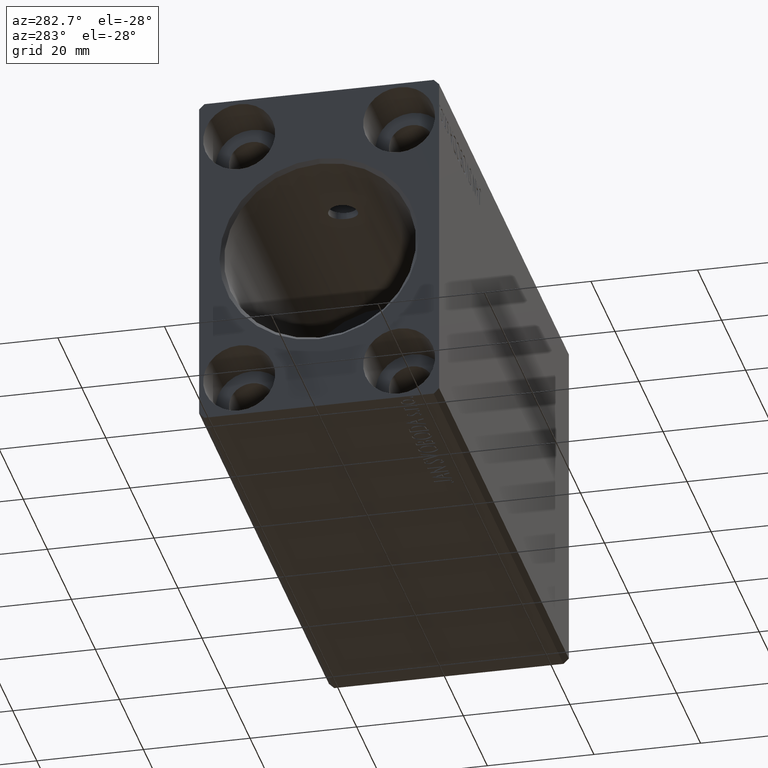
[diagram: clean part render]
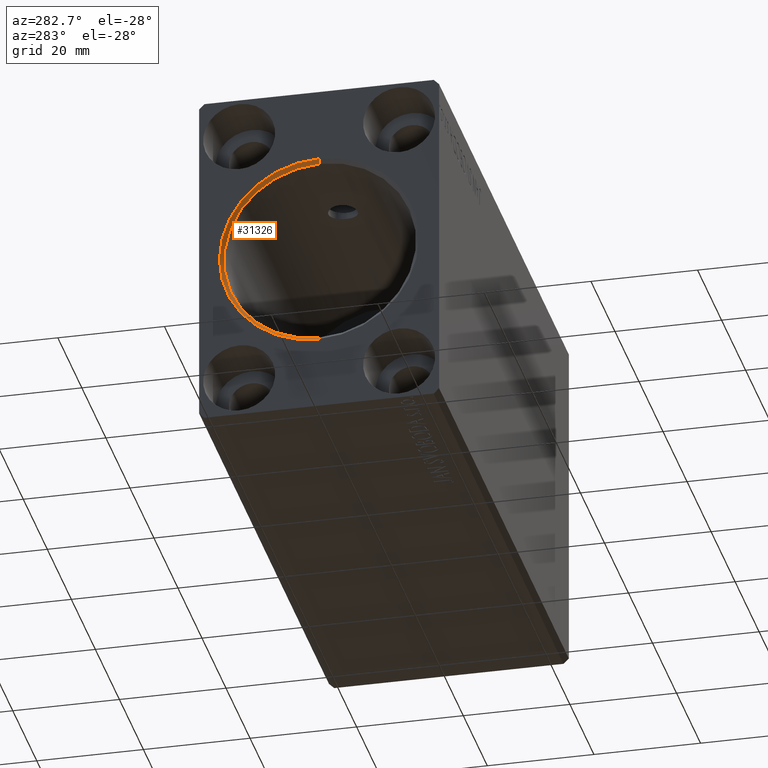
[diagram: same view with one face highlighted and labeled with its STEP entity id]
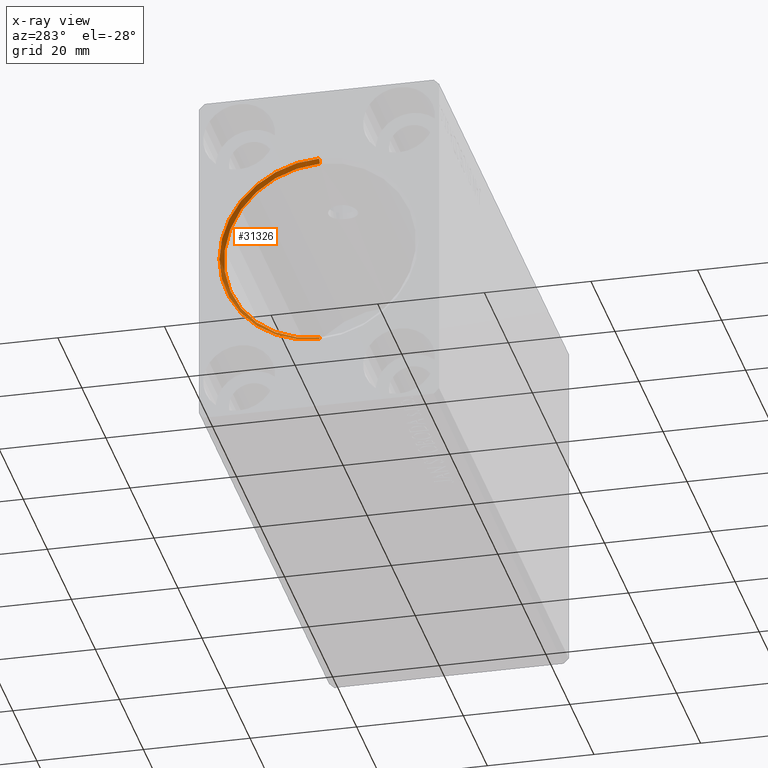
[diagram: x-ray of the same camera — body ghosted, the highlighted face saturated]
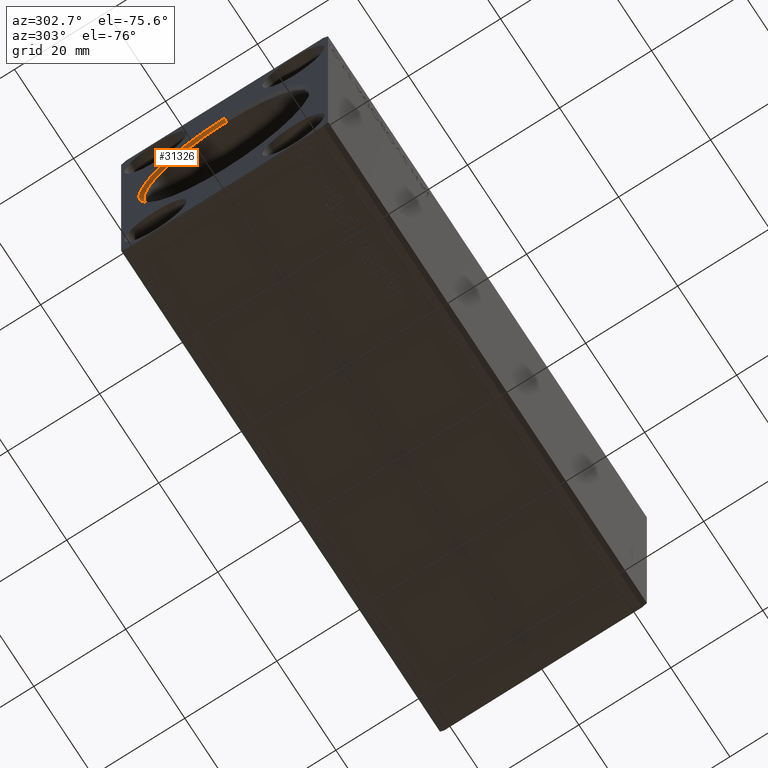
[diagram: same view with one face highlighted and labeled with its STEP entity id]
A machine part, auxiliary view. The second image highlights one B-rep face of the part: STEP entity #31326.
The next image is the same camera in x-ray: the body ghosted, the highlighted face saturated — about 0% of this face is hidden behind the body in this view.
A second angle (auxiliary view) of the same face is appended — the face is thin or edge-on in the first view.
In plain terms, the highlighted conical surface has half-angle 45 deg.
Its self-contained STEP definition (entity closure, byte-faithful):
#648 = VERTEX_POINT ( 'NONE', #16756 ) ;
#1926 = VERTEX_POINT ( 'NONE', #40739 ) ;
#2140 = DIRECTION ( 'NONE',  ( -1.000000000000000000, 0.000000000000000000, 0.000000000000000000 ) ) ;
#2732 = DIRECTION ( 'NONE',  ( -0.7071067811865510144, 8.659560562354890950E-17, -0.7071067811865441310 ) ) ;
#2908 = EDGE_CURVE ( 'NONE', #33470, #1926, #33032, .T. ) ;
#5002 = DIRECTION ( 'NONE',  ( 0.000000000000000000, 0.000000000000000000, -1.000000000000000000 ) ) ;
#8584 = CARTESIAN_POINT ( 'NONE',  ( 0.7000000000000825562, 0.000000000000000000, 0.000000000000000000 ) ) ;
#8797 = DIRECTION ( 'NONE',  ( 0.000000000000000000, 0.000000000000000000, 1.000000000000000000 ) ) ;
#9293 = VECTOR ( 'NONE', #27844, 999.9999999999998863 ) ;
#11795 = FACE_OUTER_BOUND ( 'NONE', #36640, .T. ) ;
#12379 = DIRECTION ( 'NONE',  ( 0.000000000000000000, 0.000000000000000000, -1.000000000000000000 ) ) ;
#12878 = VECTOR ( 'NONE', #2732, 999.9999999999998863 ) ;
#12989 = VERTEX_POINT ( 'NONE', #33500 ) ;
#13891 = CARTESIAN_POINT ( 'NONE',  ( 0.7000000000000825562, 0.000000000000000000, 18.00000000000000000 ) ) ;
#14664 = DIRECTION ( 'NONE',  ( -1.000000000000000000, 0.000000000000000000, 0.000000000000000000 ) ) ;
#14740 = LINE ( 'NONE', #13891, #9293 ) ;
#16756 = CARTESIAN_POINT ( 'NONE',  ( 0.000000000000000000, 2.290089514405559577E-15, -18.70000000000007390 ) ) ;
#18399 = ORIENTED_EDGE ( 'NONE', *, *, #26159, .F. ) ;
#18754 = EDGE_CURVE ( 'NONE', #33470, #12989, #14740, .T. ) ;
#19485 = LINE ( 'NONE', #29376, #12878 ) ;
#20570 = CARTESIAN_POINT ( 'NONE',  ( 0.7000000000000825562, 0.000000000000000000, 18.00000000000000000 ) ) ;
#22717 = AXIS2_PLACEMENT_3D ( 'NONE', #8584, #2140, #8797 ) ;
#24110 = CIRCLE ( 'NONE', #39209, 18.70000000000007390 ) ;
#26159 = EDGE_CURVE ( 'NONE', #1926, #648, #19485, .T. ) ;
#26443 = ORIENTED_EDGE ( 'NONE', *, *, #2908, .F. ) ;
#27844 = DIRECTION ( 'NONE',  ( -0.7071067811865510144, 0.000000000000000000, 0.7071067811865441310 ) ) ;
#28296 = DIRECTION ( 'NONE',  ( 1.000000000000000000, 0.000000000000000000, 0.000000000000000000 ) ) ;
#29376 = CARTESIAN_POINT ( 'NONE',  ( 0.7000000000000825562, 2.204364238465235428E-15, -18.00000000000000000 ) ) ;
#31326 = ADVANCED_FACE ( 'NONE', ( #11795 ), #41220, .F. ) ;
#31522 = CARTESIAN_POINT ( 'NONE',  ( 0.000000000000000000, 0.000000000000000000, 0.000000000000000000 ) ) ;
#32334 = EDGE_CURVE ( 'NONE', #648, #12989, #24110, .T. ) ;
#33032 = CIRCLE ( 'NONE', #37831, 18.00000000000000000 ) ;
#33470 = VERTEX_POINT ( 'NONE', #20570 ) ;
#33500 = CARTESIAN_POINT ( 'NONE',  ( 0.000000000000000000, 0.000000000000000000, 18.70000000000007390 ) ) ;
#35269 = ORIENTED_EDGE ( 'NONE', *, *, #18754, .T. ) ;
#36640 = EDGE_LOOP ( 'NONE', ( #18399, #26443, #35269, #40064 ) ) ;
#37448 = CARTESIAN_POINT ( 'NONE',  ( 0.7000000000000825562, 0.000000000000000000, 0.000000000000000000 ) ) ;
#37831 = AXIS2_PLACEMENT_3D ( 'NONE', #37448, #14664, #5002 ) ;
#39209 = AXIS2_PLACEMENT_3D ( 'NONE', #31522, #28296, #12379 ) ;
#40064 = ORIENTED_EDGE ( 'NONE', *, *, #32334, .F. ) ;
#40739 = CARTESIAN_POINT ( 'NONE',  ( 0.7000000000000825562, 2.204364238465235033E-15, -18.00000000000000000 ) ) ;
#41220 = CONICAL_SURFACE ( 'NONE', #22717, 18.00000000000000000, 0.7853981633974433940 ) ;